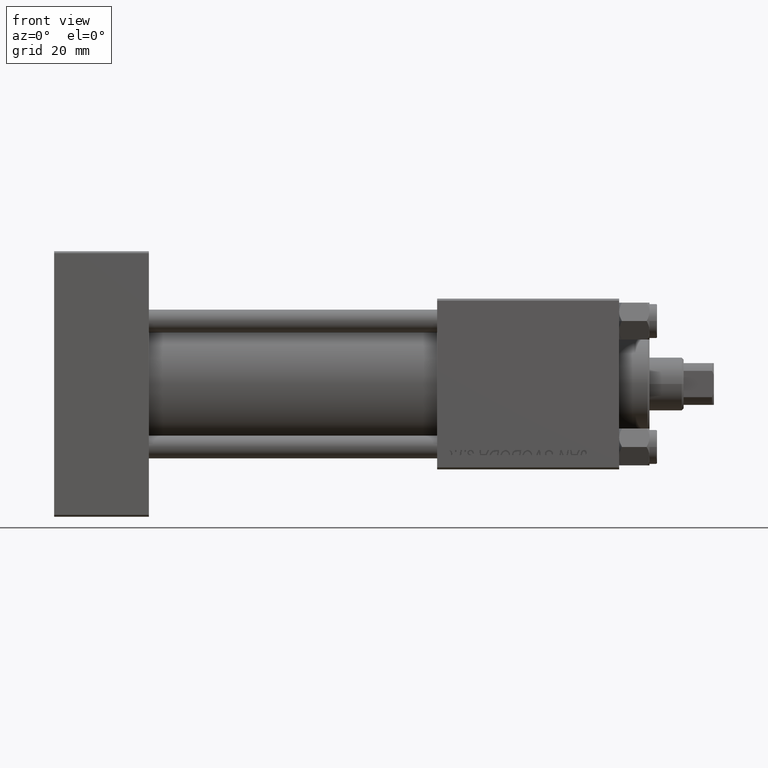
[diagram: clean part render]
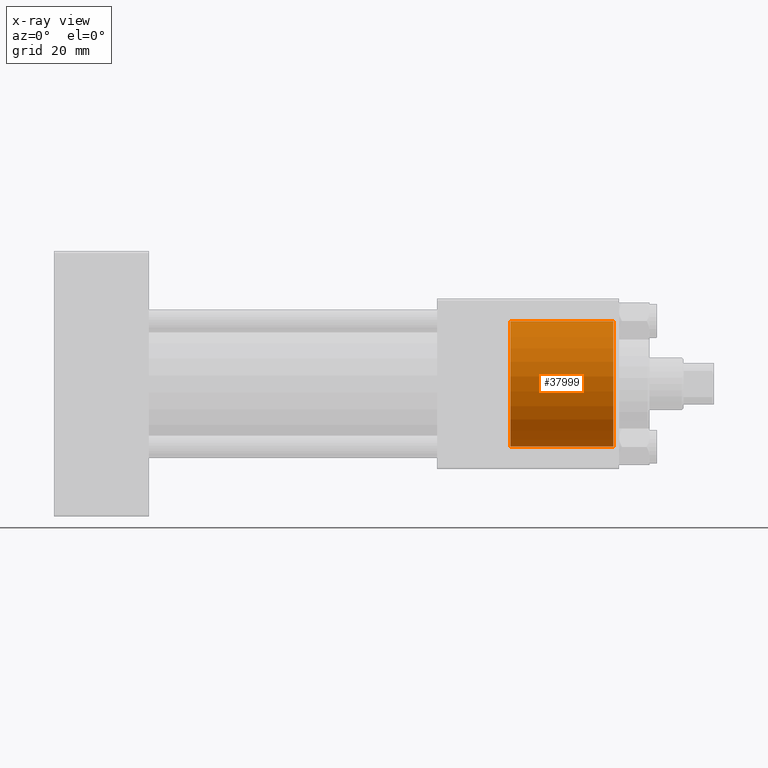
[diagram: x-ray — body ghosted, one internal face saturated and labeled with its STEP entity id]
A machine part, front view, then the same camera in x-ray: the body is ghosted and one INTERNAL B-rep face — a face not visible from any outside direction — is saturated and labeled: STEP entity #37999.
In plain terms, the highlighted cylindrical surface (partial cylindrical patch) has radius 16.5 mm, axis along (1, 0, 0).
Its self-contained STEP definition (entity closure, byte-faithful):
#534 = DIRECTION ( 'NONE',  ( 1.000000000000000000, 0.000000000000000000, 0.000000000000000000 ) ) ;
#1531 = CARTESIAN_POINT ( 'NONE',  ( 120.3000000000000114, 0.000000000000000000, 0.000000000000000000 ) ) ;
#2600 = CARTESIAN_POINT ( 'NONE',  ( 120.3000000000000114, 2.020667218593133100E-15, 16.50000000000000000 ) ) ;
#3806 = AXIS2_PLACEMENT_3D ( 'NONE', #17894, #28260, #36584 ) ;
#5415 = CARTESIAN_POINT ( 'NONE',  ( 120.3000000000000114, 0.000000000000000000, -16.50000000000000000 ) ) ;
#6699 = DIRECTION ( 'NONE',  ( 1.000000000000000000, -0.000000000000000000, -0.000000000000000000 ) ) ;
#8189 = VERTEX_POINT ( 'NONE', #23088 ) ;
#11213 = ORIENTED_EDGE ( 'NONE', *, *, #41751, .T. ) ;
#12924 = ORIENTED_EDGE ( 'NONE', *, *, #38389, .F. ) ;
#14288 = LINE ( 'NONE', #25659, #17554 ) ;
#14384 = VECTOR ( 'NONE', #48845, 1000.000000000000000 ) ;
#15721 = ORIENTED_EDGE ( 'NONE', *, *, #40201, .F. ) ;
#17554 = VECTOR ( 'NONE', #6699, 1000.000000000000000 ) ;
#17894 = CARTESIAN_POINT ( 'NONE',  ( 120.3000000000000114, 0.000000000000000000, 0.000000000000000000 ) ) ;
#20011 = DIRECTION ( 'NONE',  ( 0.000000000000000000, 0.000000000000000000, 1.000000000000000000 ) ) ;
#21685 = VERTEX_POINT ( 'NONE', #42257 ) ;
#23088 = CARTESIAN_POINT ( 'NONE',  ( 147.4999999999999716, 2.020667218593133100E-15, 16.50000000000000000 ) ) ;
#23790 = CARTESIAN_POINT ( 'NONE',  ( 147.4999999999999716, 0.000000000000000000, 0.000000000000000000 ) ) ;
#25064 = CIRCLE ( 'NONE', #34742, 16.50000000000000000 ) ;
#25291 = FACE_OUTER_BOUND ( 'NONE', #32945, .T. ) ;
#25659 = CARTESIAN_POINT ( 'NONE',  ( 120.3000000000000114, 0.000000000000000000, -16.50000000000000000 ) ) ;
#27174 = AXIS2_PLACEMENT_3D ( 'NONE', #1531, #40439, #48771 ) ;
#28260 = DIRECTION ( 'NONE',  ( 1.000000000000000000, 0.000000000000000000, 0.000000000000000000 ) ) ;
#32945 = EDGE_LOOP ( 'NONE', ( #12924, #11213, #46165, #15721 ) ) ;
#33141 = CARTESIAN_POINT ( 'NONE',  ( 120.3000000000000114, 2.020667218593133100E-15, 16.50000000000000000 ) ) ;
#33357 = CYLINDRICAL_SURFACE ( 'NONE', #27174, 16.50000000000000000 ) ;
#34742 = AXIS2_PLACEMENT_3D ( 'NONE', #23790, #534, #20011 ) ;
#36584 = DIRECTION ( 'NONE',  ( 0.000000000000000000, 0.000000000000000000, -1.000000000000000000 ) ) ;
#37211 = LINE ( 'NONE', #2600, #14384 ) ;
#37999 = ADVANCED_FACE ( 'NONE', ( #25291 ), #33357, .F. ) ;
#38389 = EDGE_CURVE ( 'NONE', #44609, #44168, #47357, .T. ) ;
#40201 = EDGE_CURVE ( 'NONE', #44168, #21685, #14288, .T. ) ;
#40439 = DIRECTION ( 'NONE',  ( 1.000000000000000000, -0.000000000000000000, -0.000000000000000000 ) ) ;
#41751 = EDGE_CURVE ( 'NONE', #44609, #8189, #37211, .T. ) ;
#42257 = CARTESIAN_POINT ( 'NONE',  ( 147.4999999999999716, 0.000000000000000000, -16.50000000000000000 ) ) ;
#44168 = VERTEX_POINT ( 'NONE', #5415 ) ;
#44609 = VERTEX_POINT ( 'NONE', #33141 ) ;
#46165 = ORIENTED_EDGE ( 'NONE', *, *, #48135, .T. ) ;
#47357 = CIRCLE ( 'NONE', #3806, 16.50000000000000000 ) ;
#48135 = EDGE_CURVE ( 'NONE', #8189, #21685, #25064, .T. ) ;
#48771 = DIRECTION ( 'NONE',  ( 0.000000000000000000, 0.000000000000000000, -1.000000000000000000 ) ) ;
#48845 = DIRECTION ( 'NONE',  ( 1.000000000000000000, -0.000000000000000000, -0.000000000000000000 ) ) ;